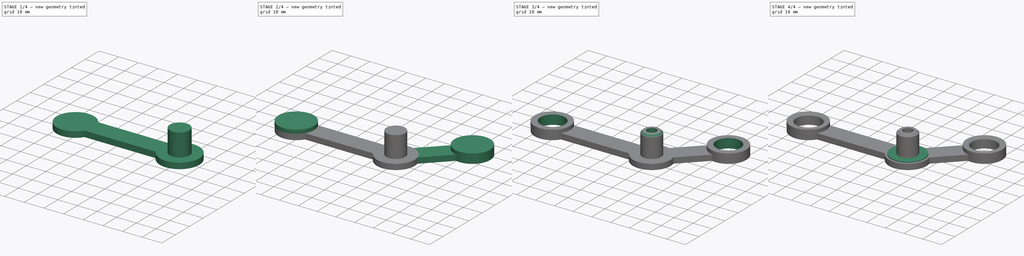
[diagram: build sequence overview — one tinted view per stage of 4, left to right]
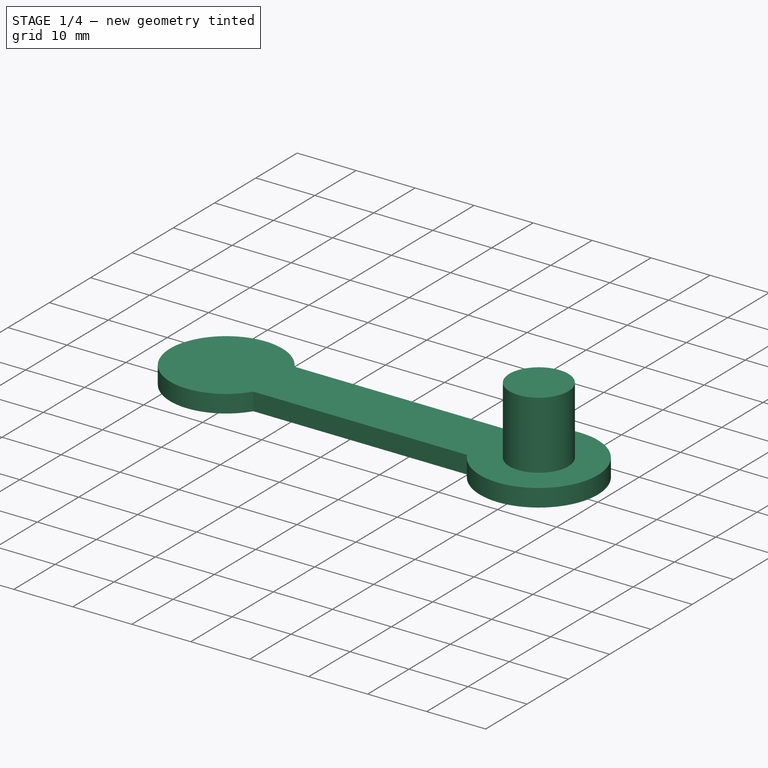
[diagram: stage 1 of 4 — iso view after this stage's code; geometry added in this stage tinted green]
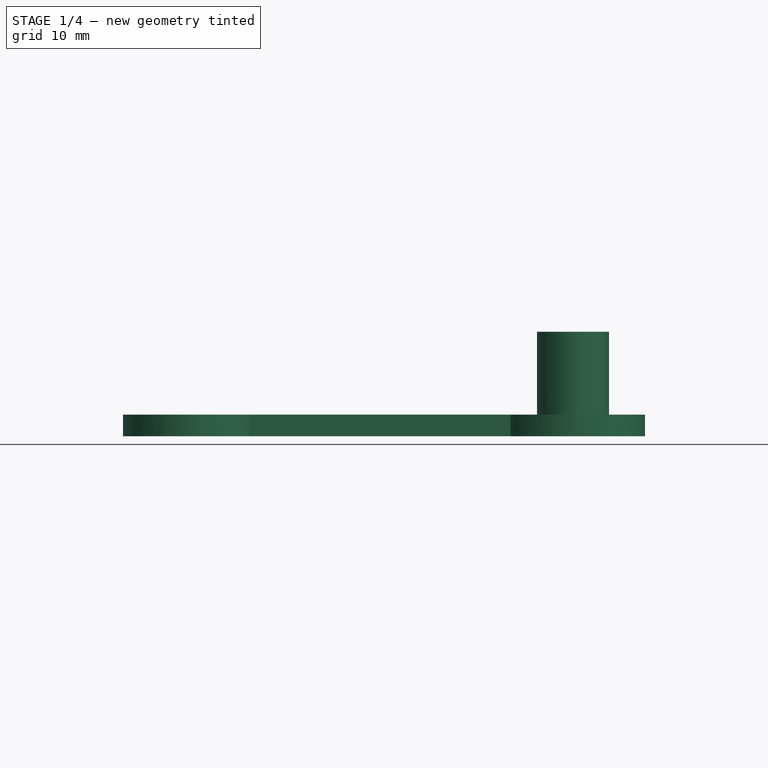
[diagram: stage 1 of 4 — front view after this stage's code; geometry added in this stage tinted green]
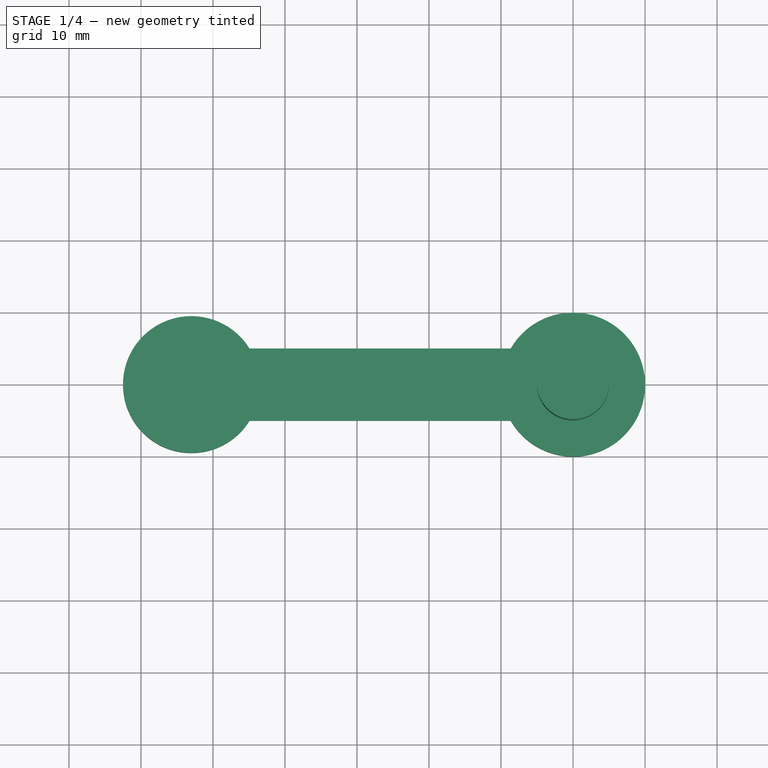
[diagram: stage 1 of 4 — top view after this stage's code; geometry added in this stage tinted green]
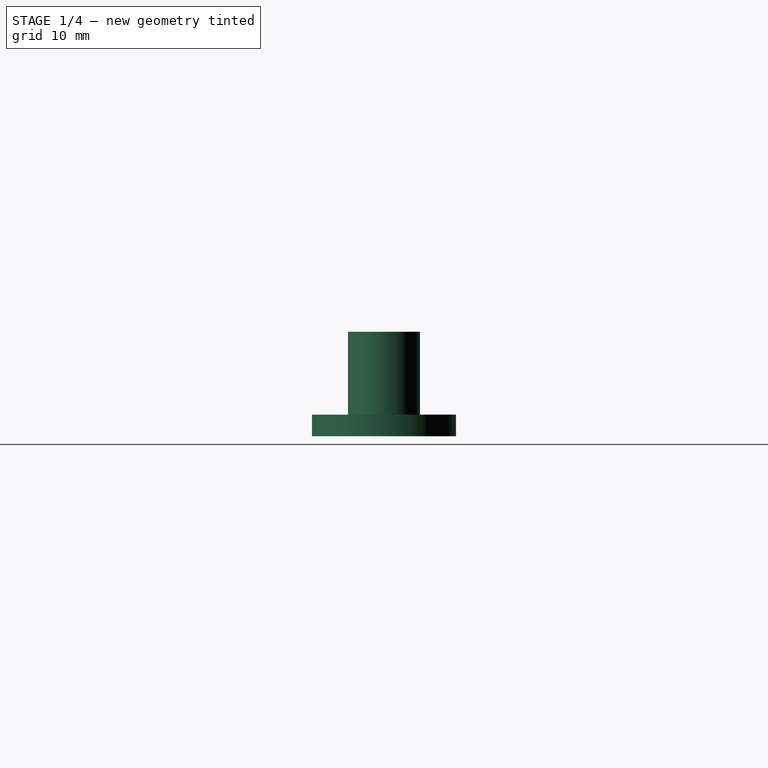
[diagram: stage 1 of 4 — right view after this stage's code; geometry added in this stage tinted green]
FCSTD DOCUMENT  (FreeCAD 0.19R24276 (Git))
Label: Belt_tension_second_floor
License: All rights reserved
LicenseURL: http://en.wikipedia.org/wiki/All_rights_reserved
objects: Sketcher::SketchObject×7, PartDesign::Pad×5, PartDesign::Pocket×2, PartDesign::Chamfer×2, PartDesign::Body×1
note: 26 computed .brp shape members not serialized (recipe doc carries the construction recipe); baked Part::Feature solids carry a one-line shape summary decoded from their .brp

FEATURE [Sketcher::SketchObject] Sketch  label="Sketch_d10"
  FullyConstrained = true
  MapMode = 5
  Support = -> [XY_Plane]
  sketch-geometry (1):
    g0: Circle CenterX=0 CenterY=0 CenterZ=0 NormalX=0 NormalY=0 NormalZ=1 AngleXU=0 Radius=5
  constraints (2):
    c: Coincident(g0,g-1)
    c: Diameter(g0) = 10
FEATURE [PartDesign::Pad] Pad  label="Pad_h14"
  Direction = (1,1,1)
  Length = 11.5
  Length2 = 100
  Profile = -> Sketch
  Type = 0
FEATURE [Sketcher::SketchObject] Sketch001  label="Sketch001_d19_L53"
  FullyConstrained = true
  MapMode = 5
  Placement = pos=(0,0,0) rot=(1,0,0;3.14159rad)
  Support = -> [Pad]
  sketch-geometry (5):
    g0: ArcOfCircle CenterX=-53 CenterY=0 CenterZ=0 NormalX=0 NormalY=0 NormalZ=1 AngleXU=0 Radius=9.5 StartAngle=0.554262 EndAngle=5.72892
    g1: ArcOfCircle CenterX=0 CenterY=0 CenterZ=0 NormalX=0 NormalY=0 NormalZ=1 AngleXU=0 Radius=10 StartAngle=3.66519 EndAngle=8.90118
    g2: LineSegment StartX=-44.9223 StartY=5 StartZ=0 EndX=-8.66025 EndY=5 EndZ=0
    g3: LineSegment StartX=-8.66025 StartY=-5 StartZ=0 EndX=-44.9223 EndY=-5 EndZ=0
    g4: LineSegment StartX=-53 StartY=0 StartZ=0 EndX=-44.9223 EndY=0 EndZ=0
  constraints (15):
    c: PointOnObject(g0,g-1)
    c: DistanceX(g0,g-1) = 53
    c: Diameter(g0) = 19
    c: Coincident(g1,g-1)
    c: Diameter(g1) = 20
    c: Horizontal(g2)
    c: Horizontal(g3)
    c: Coincident(g1,g2)
    c: Coincident(g3,g1)
    c: DistanceY(g1,g1) = 10
    c: Coincident(g4,g0)
    c: Horizontal(g4)
    c: Symmetric(g2,g3,g4)
    c: Coincident(g0,g2)
    c: Coincident(g0,g3)
FEATURE [PartDesign::Pad] Pad001  label="Pad001_d3"
  BaseFeature = -> Pad
  Direction = (1,1,1)
  Length = 3
  Length2 = 100
  Profile = -> Sketch001
  Type = 0
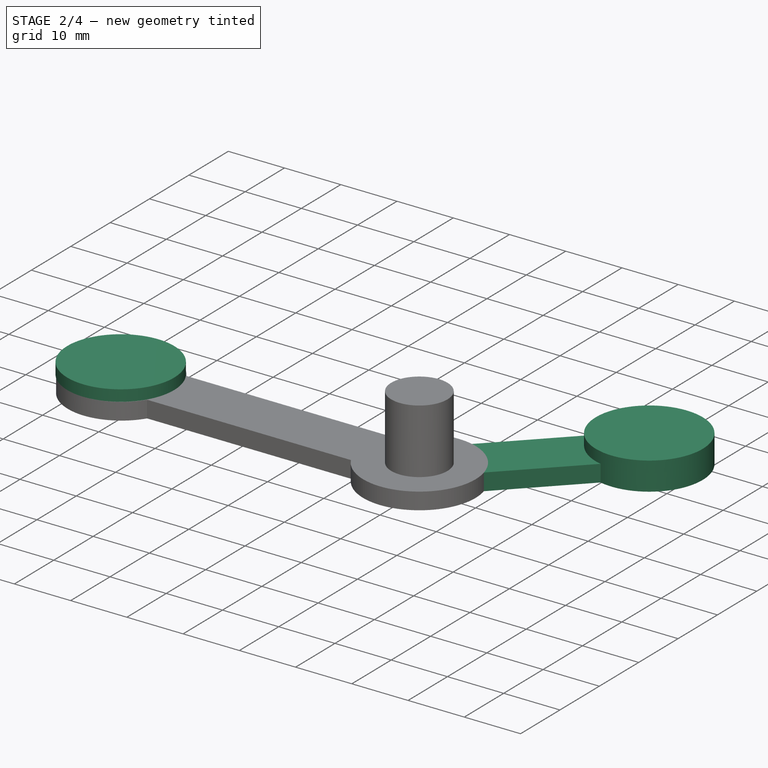
[diagram: stage 2 of 4 — iso view after this stage's code; geometry added in this stage tinted green]
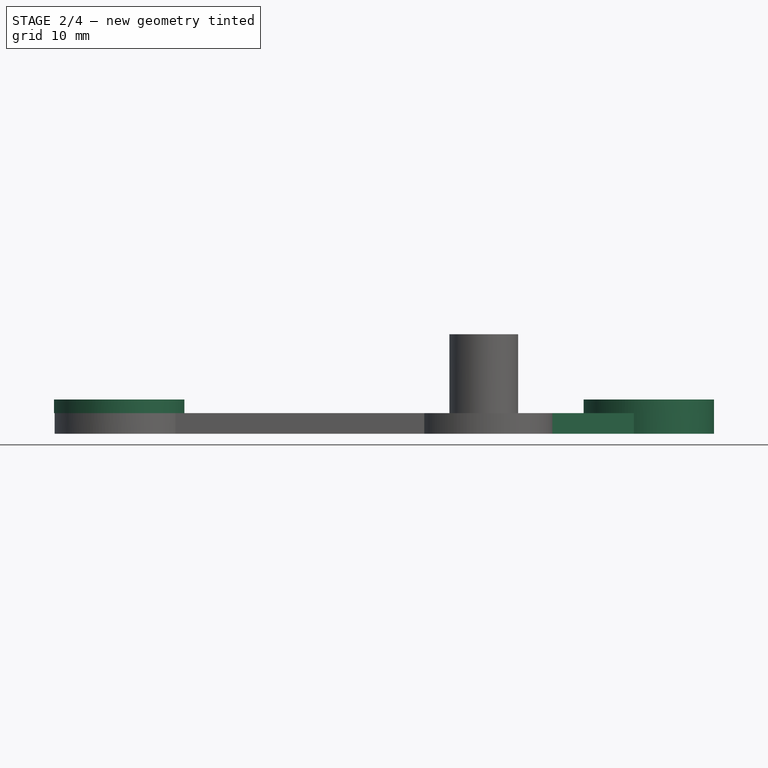
[diagram: stage 2 of 4 — front view after this stage's code; geometry added in this stage tinted green]
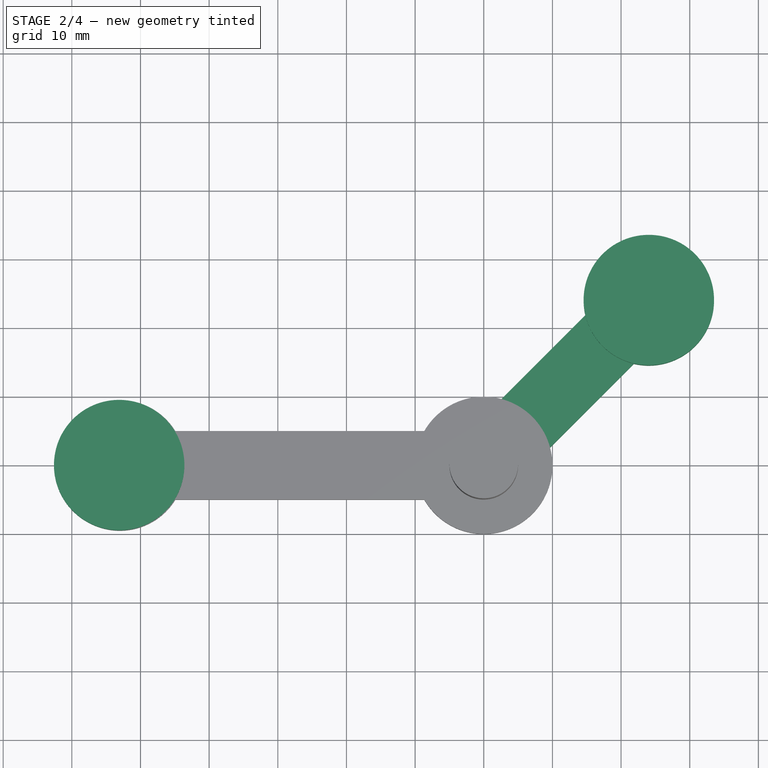
[diagram: stage 2 of 4 — top view after this stage's code; geometry added in this stage tinted green]
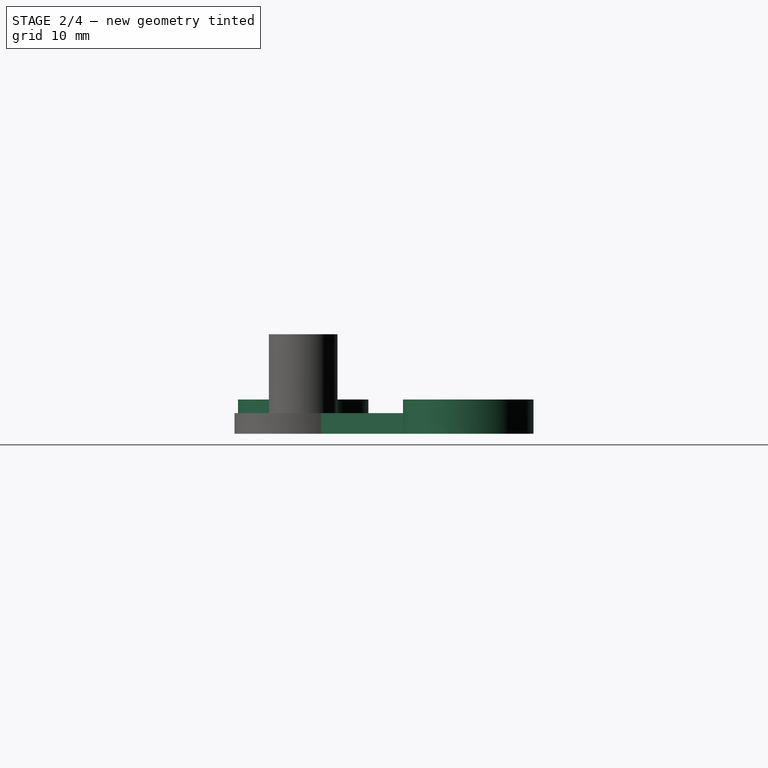
[diagram: stage 2 of 4 — right view after this stage's code; geometry added in this stage tinted green]
FEATURE [Sketcher::SketchObject] Sketch002  label="Sketch002_d19_L53"
  FullyConstrained = false
  MapMode = 5
  Support = -> [Pad001]
  sketch-geometry (16):
    g0: Circle CenterX=-53 CenterY=0 CenterZ=0 NormalX=0 NormalY=0 NormalZ=1 AngleXU=0 Radius=6.5
    g1: Circle CenterX=-53 CenterY=0 CenterZ=0 NormalX=0 NormalY=0 NormalZ=1 AngleXU=0 Radius=9.5
    g2: Circle CenterX=0 CenterY=0 CenterZ=0 NormalX=0 NormalY=0 NormalZ=1 AngleXU=0 Radius=34
    g3: LineSegment StartX=-53 StartY=0 StartZ=0 EndX=24.0416 EndY=-0.246203 EndZ=0
    g4: LineSegment StartX=24.0416 StartY=-0.246203 StartZ=0 EndX=24.0416 EndY=24.0416 EndZ=0
    g5: LineSegment StartX=0 StartY=0 StartZ=0 EndX=24.0416 EndY=24.0416 EndZ=0
    g6: ArcOfCircle CenterX=24.0416 CenterY=24.0416 CenterZ=0 NormalX=0 NormalY=0 NormalZ=1 AngleXU=0 Radius=9.5 StartAngle=4.48125 EndAngle=9.65591
    g7: Circle CenterX=24.0416 CenterY=24.0416 CenterZ=0 NormalX=0 NormalY=0 NormalZ=1 AngleXU=0 Radius=6.5
    g8: ArcOfCircle CenterX=24.0416 CenterY=24.0416 CenterZ=0 NormalX=0 NormalY=0 NormalZ=1 AngleXU=0 Radius=5 StartAngle=5.42419 EndAngle=8.63938
    g9: ArcOfCircle CenterX=0 CenterY=0 CenterZ=0 NormalX=0 NormalY=0 NormalZ=1 AngleXU=0 Radius=5 StartAngle=2.35619 EndAngle=5.49779
    g10: LineSegment StartX=3.53553 StartY=-3.53553 StartZ=0 EndX=21.8653 EndY=14.7943 EndZ=0
    g11: LineSegment StartX=-3.53553 StartY=3.53553 StartZ=0 EndX=14.7943 EndY=21.8653 EndZ=0
    g12: LineSegment StartX=3.53553 StartY=-3.53553 StartZ=0 EndX=0 EndY=0 EndZ=0
    g13: LineSegment StartX=0 StartY=0 StartZ=0 EndX=-3.53553 EndY=3.53553 EndZ=0
    g14: LineSegment StartX=24.6403 StartY=17.5693 StartZ=0 EndX=27.5772 EndY=20.5061 EndZ=0
    g15: LineSegment StartX=17.5693 StartY=24.6403 StartZ=0 EndX=20.5061 EndY=27.5771 EndZ=0
  constraints (41):
    c: PointOnObject(g0,g-1)
    c: DistanceX(g0,g-1) = 53
    c: Diameter(g0) = 13
    c: Coincident(g1,g0)
    c: Diameter(g1) = 19
    c: Coincident(g2,g-1)
    c: Diameter(g2) = 68
    c: Coincident(g3,g1)
    c: Coincident(g4,g3)
    c: Vertical(g4)
    c: PointOnObject(g4,g2)
    c: Coincident(g5,g-1)
    c: Coincident(g5,g4)
    c: Angle(g5,g-1) = -0.785398
    c: Coincident(g6,g4)
    c: Diameter(g6) = 19
    c: Coincident(g7,g4)
    c: Diameter(g7) = 13
    c: Coincident(g8,g4)
    c: Diameter(g8) = 10
    c: Coincident(g9,g-1)
    c: Diameter(g9) = 10
    c: PointOnObject(g14,g8)
    c: Tangent(g10,g8)
    c: Coincident(g12,g10)
    c: Coincident(g12,g-1)
    c: Coincident(g13,g-1)
    c: Coincident(g13,g11)
    c: Perpendicular(g12,g10)
    c: Perpendicular(g11,g13)
    c: Coincident(g9,g10)
    c: Coincident(g9,g11)
    c: PointOnObject(g8,g2)
    c: Coincident(g8,g15)
    c: Coincident(g10,g6)
    c: PointOnObject(g14,g7)
    c: Tangent(g10,g14)
    c: Coincident(g11,g6)
    c: Tangent(g11,g15)
    c: PointOnObject(g15,g7)
    c: Parallel(g10,g11)
FEATURE [PartDesign::Pad] Pad002  label="Pad002_h2"
  BaseFeature = -> Pad001
  Direction = (1,1,1)
  Length = 3
  Length2 = 100
  Profile = -> Sketch002
  Reversed = true
  Type = 0
FEATURE [Sketcher::SketchObject] Sketch003  label="Sketch003_d19"
  FullyConstrained = false
  MapMode = 5
  Support = -> [Pad002]
  sketch-geometry (28):
    g0: Circle CenterX=-53.1019 CenterY=0 CenterZ=0 NormalX=0 NormalY=0 NormalZ=1 AngleXU=0 Radius=9.5
    g1: Circle CenterX=24.0416 CenterY=24.0416 CenterZ=0 NormalX=0 NormalY=0 NormalZ=1 AngleXU=0 Radius=9.5
    g2: Circle CenterX=0 CenterY=0 CenterZ=0 NormalX=0 NormalY=0 NormalZ=1 AngleXU=0 Radius=34
    g3: LineSegment StartX=0 StartY=0 StartZ=0 EndX=24.0416 EndY=24.0416 EndZ=0
    g4: LineSegment StartX=-119.39 StartY=-26.1967 StartZ=0 EndX=-107.305 EndY=-26.1967 EndZ=0
    g5: LineSegment StartX=-107.305 StartY=-26.1967 StartZ=0 EndX=-107.305 EndY=-36.1967 EndZ=0
    g6: LineSegment StartX=-107.305 StartY=-36.1967 StartZ=0 EndX=-119.39 EndY=-36.1967 EndZ=0
    g7: LineSegment StartX=-119.39 StartY=-36.1967 StartZ=0 EndX=-119.39 EndY=-26.1967 EndZ=0
    g8: LineSegment StartX=-119.39 StartY=-25.1967 StartZ=0 EndX=-77.7189 EndY=-25.1967 EndZ=0
    g9: LineSegment StartX=-77.7189 StartY=-25.1967 StartZ=0 EndX=-77.7189 EndY=-26.1967 EndZ=0
    g10: LineSegment StartX=-77.7189 StartY=-26.1967 StartZ=0 EndX=-119.39 EndY=-26.1967 EndZ=0
    g11: LineSegment StartX=-119.39 StartY=-26.1967 StartZ=0 EndX=-119.39 EndY=-25.1967 EndZ=0
    g12: LineSegment StartX=-119.39 StartY=-25.1967 StartZ=0 EndX=-101.537 EndY=-25.1967 EndZ=0
    g13: LineSegment StartX=-101.537 StartY=-25.1967 StartZ=0 EndX=-101.537 EndY=-20.1967 EndZ=0
    g14: LineSegment StartX=-101.537 StartY=-20.1967 StartZ=0 EndX=-119.39 EndY=-20.1967 EndZ=0
    g15: LineSegment StartX=-119.39 StartY=-20.1967 StartZ=0 EndX=-119.39 EndY=-25.1967 EndZ=0
    g16: LineSegment StartX=-101.537 StartY=-25.1967 StartZ=0 EndX=-93.6301 EndY=-25.1967 EndZ=0
    g17: LineSegment StartX=-93.6301 StartY=-25.1967 StartZ=0 EndX=-93.6301 EndY=-22.1967 EndZ=0
    g18: LineSegment StartX=-93.6301 StartY=-22.1967 StartZ=0 EndX=-101.537 EndY=-22.1967 EndZ=0
    g19: LineSegment StartX=-101.537 StartY=-22.1967 StartZ=0 EndX=-101.537 EndY=-25.1967 EndZ=0
    g20: LineSegment StartX=-93.6301 StartY=-25.1967 StartZ=0 EndX=-74.242 EndY=-25.1967 EndZ=0
    g21: LineSegment StartX=-74.242 StartY=-25.1967 StartZ=0 EndX=-74.242 EndY=-19.1967 EndZ=0
    g22: LineSegment StartX=-74.242 StartY=-19.1967 StartZ=0 EndX=-93.6301 EndY=-19.1967 EndZ=0
    g23: LineSegment StartX=-93.6301 StartY=-19.1967 StartZ=0 EndX=-93.6301 EndY=-25.1967 EndZ=0
    g24: LineSegment StartX=-93.6301 StartY=-19.1967 StartZ=0 EndX=-78.923 EndY=-19.1967 EndZ=0
    g25: LineSegment StartX=-78.923 StartY=-19.1967 StartZ=0 EndX=-78.923 EndY=-8.19675 EndZ=0
    g26: LineSegment StartX=-78.923 StartY=-8.19675 StartZ=0 EndX=-93.6301 EndY=-8.19675 EndZ=0
    g27: LineSegment StartX=-93.6301 StartY=-8.19675 StartZ=0 EndX=-93.6301 EndY=-19.1967 EndZ=0
  constraints (68):
    c: PointOnObject(g0,g-1)
    c: Diameter(g0) = 19
    c: Diameter(g1) = 19
    c: Coincident(g2,g-1)
    c: Diameter(g2) = 68
    c: Coincident(g3,g-1)
    c: Angle(g3,g-1) = -0.785398
    c: PointOnObject(g3,g2)
    c: Coincident(g1,g3)
    c: Coincident(g4,g5)
    c: Coincident(g5,g6)
    c: Coincident(g6,g7)
    c: Coincident(g7,g4)
    c: Horizontal(g4)
    c: Horizontal(g6)
    c: Vertical(g5)
    c: Vertical(g7)
    c: Coincident(g8,g9)
    c: Coincident(g9,g10)
    c: Coincident(g10,g11)
    c: Coincident(g11,g8)
    c: Horizontal(g8)
    c: Horizontal(g10)
    c: Vertical(g9)
    c: Vertical(g11)
    c: DistanceY(g7,g7) = 10
    c: DistanceY(g11,g11) = 1
    c: Coincident(g10,g4)
    c: Coincident(g12,g13)
    c: Coincident(g13,g14)
    c: Coincident(g14,g15)
    c: Coincident(g15,g12)
    c: Horizontal(g12)
    c: Horizontal(g14)
    c: Vertical(g13)
    c: Vertical(g15)
    c: Coincident(g12,g8)
    c: DistanceY(g15,g15) = 5
    c: Coincident(g16,g17)
    c: Coincident(g17,g18)
    c: Coincident(g18,g19)
    c: Coincident(g19,g16)
    c: Horizontal(g16)
    c: Horizontal(g18)
    c: Vertical(g17)
    c: Vertical(g19)
    c: Coincident(g16,g12)
    c: DistanceY(g17,g17) = 3
    c: Coincident(g20,g21)
    c: Coincident(g21,g22)
    c: Coincident(g22,g23)
    c: Coincident(g23,g20)
    c: Horizontal(g20)
    c: Horizontal(g22)
    c: Vertical(g21)
    c: Vertical(g23)
    c: Coincident(g20,g16)
    c: Coincident(g24,g25)
    c: Coincident(g25,g26)
    c: Coincident(g26,g27)
    c: Coincident(g27,g24)
    c: Horizontal(g24)
    c: Horizontal(g26)
    c: Vertical(g25)
    c: Vertical(g27)
    c: Coincident(g24,g22)
    c: DistanceY(g25,g25) = 11
    c: DistanceY(g5,g25) = 28
FEATURE [PartDesign::Pad] Pad003  label="Pad003_h2"
  BaseFeature = -> Pad002
  Direction = (1,1,1)
  Length = 2
  Length2 = 100
  Profile = -> Sketch003
  Type = 0
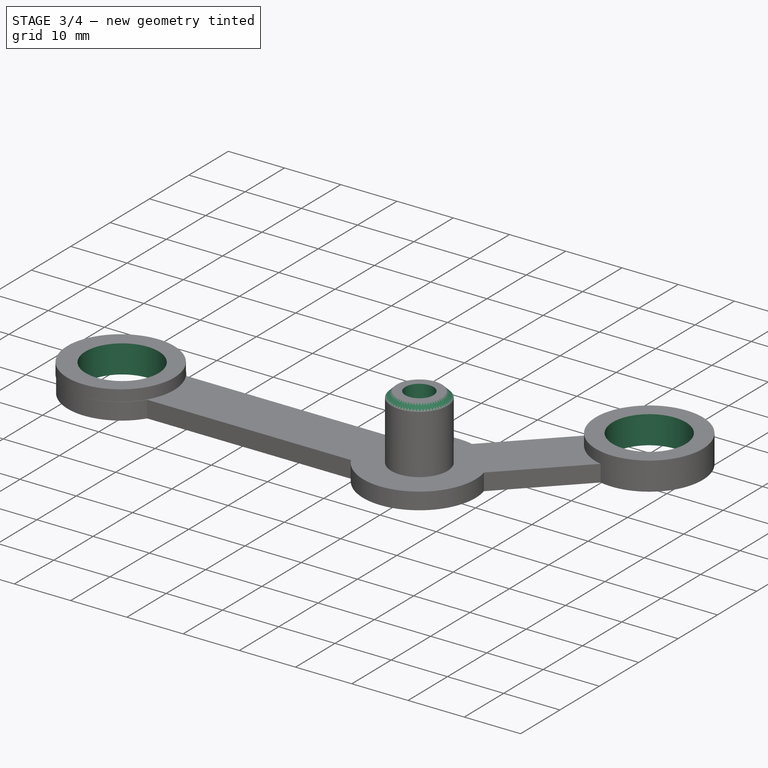
[diagram: stage 3 of 4 — iso view after this stage's code; geometry added in this stage tinted green]
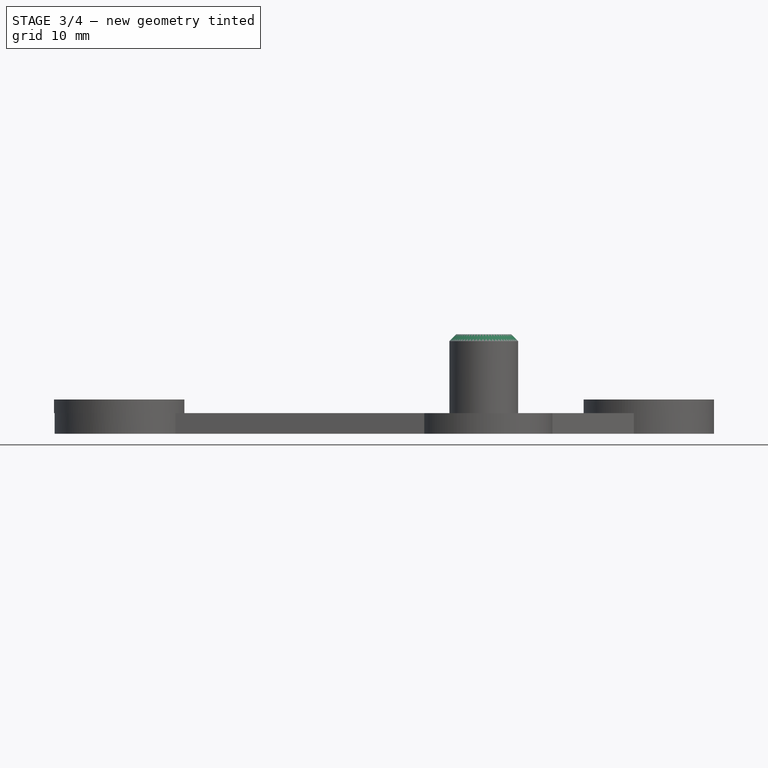
[diagram: stage 3 of 4 — front view after this stage's code; geometry added in this stage tinted green]
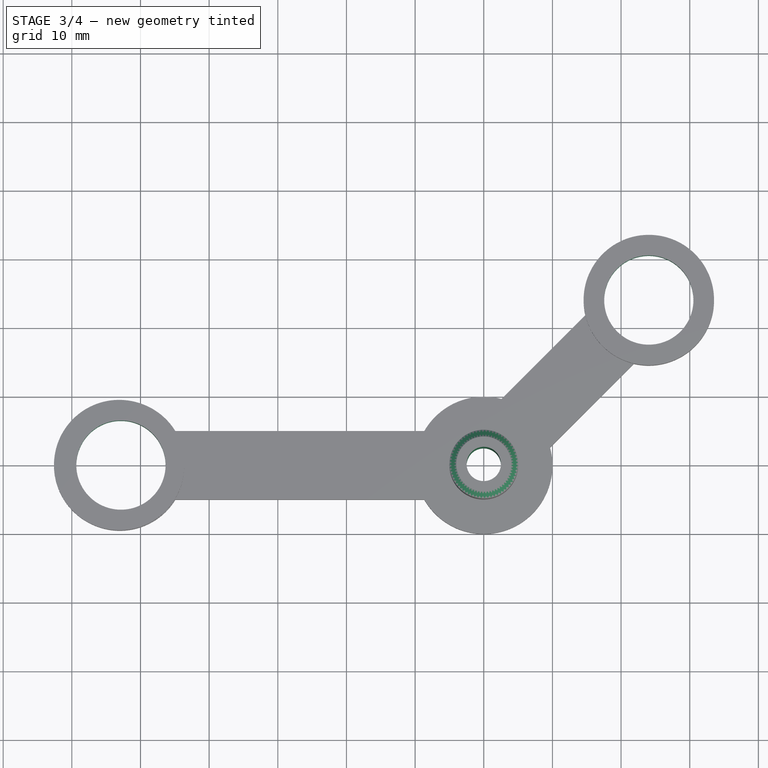
[diagram: stage 3 of 4 — top view after this stage's code; geometry added in this stage tinted green]
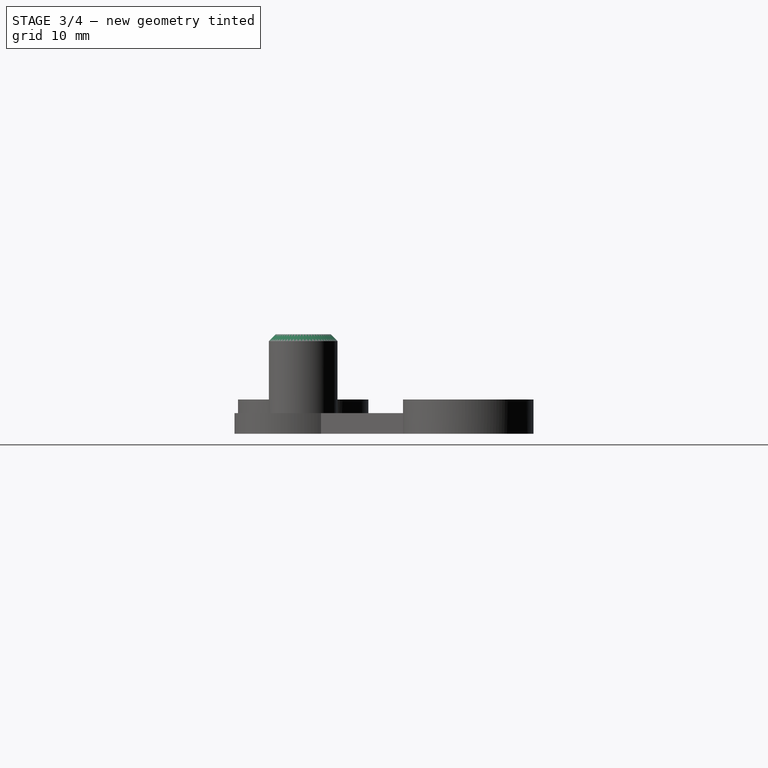
[diagram: stage 3 of 4 — right view after this stage's code; geometry added in this stage tinted green]
FEATURE [Sketcher::SketchObject] Sketch004
  FullyConstrained = false
  MapMode = 5
  Placement = pos=(0,0,2) rot=(0,0,1;0rad)
  Support = -> [Pad003]
  sketch-geometry (4):
    g0: Circle CenterX=-52.8446 CenterY=0 CenterZ=0 NormalX=0 NormalY=0 NormalZ=1 AngleXU=0 Radius=6.5
    g1: Circle CenterX=24.0416 CenterY=24.0416 CenterZ=0 NormalX=0 NormalY=0 NormalZ=1 AngleXU=0 Radius=6.5
    g2: Circle CenterX=0 CenterY=0 CenterZ=0 NormalX=0 NormalY=0 NormalZ=1 AngleXU=0 Radius=34
    g3: LineSegment StartX=0 StartY=0 StartZ=0 EndX=24.0416 EndY=24.0416 EndZ=0
  constraints (9):
    c: PointOnObject(g0,g-1)
    c: Diameter(g1) = 13
    c: Equal(g1,g0)
    c: Coincident(g2,g-1)
    c: Diameter(g2) = 68
    c: Coincident(g3,g-1)
    c: PointOnObject(g3,g2)
    c: Angle(g3,g-1) = -0.785398
    c: Coincident(g1,g3)
FEATURE [PartDesign::Pocket] Pocket
  BaseFeature = -> Pad003
  Length = 5
  Length2 = 100
  Profile = -> Sketch004
  Type = 1
FEATURE [Sketcher::SketchObject] Sketch005
  FullyConstrained = true
  MapMode = 5
  Placement = pos=(0,0,11.5) rot=(0,0,1;0rad)
  Support = -> [Pocket]
  sketch-geometry (1):
    g0: Circle CenterX=0 CenterY=0 CenterZ=0 NormalX=0 NormalY=0 NormalZ=1 AngleXU=0 Radius=2.5
  constraints (2):
    c: Coincident(g0,g-1)
    c: Diameter(g0) = 5
FEATURE [PartDesign::Pocket] Pocket001
  BaseFeature = -> Pocket
  Length = 5
  Length2 = 100
  Profile = -> Sketch005
  Type = 1
FEATURE [PartDesign::Chamfer] Chamfer
  Angle = 45
  Base = -> Pocket001 [Edge36]
  BaseFeature = -> Pocket001
  ChamferType = 0
  FlipDirection = false
  Size = 1
  Size2 = 1
  SupportTransform = false
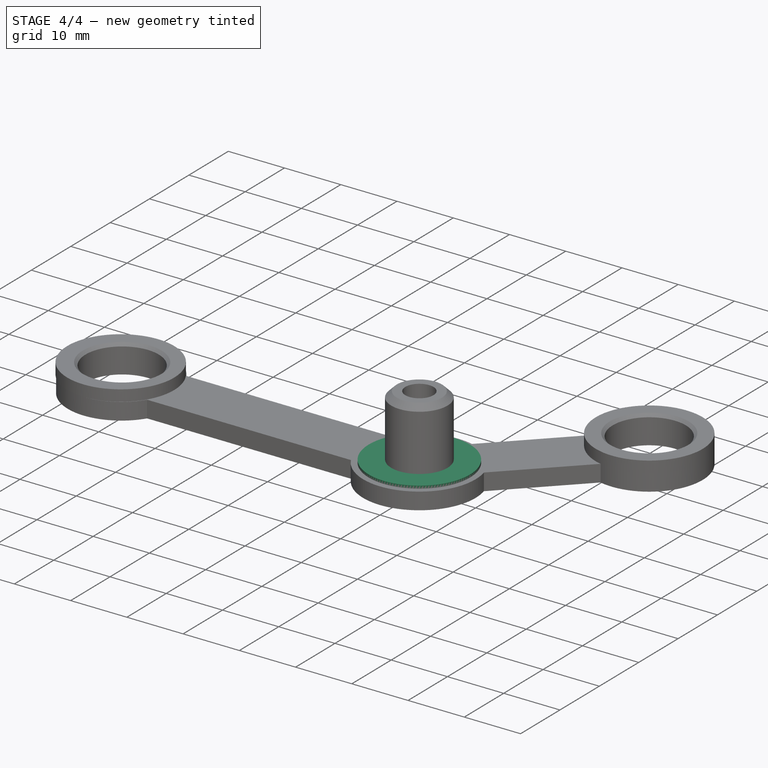
[diagram: stage 4 of 4 — iso view after this stage's code; geometry added in this stage tinted green]
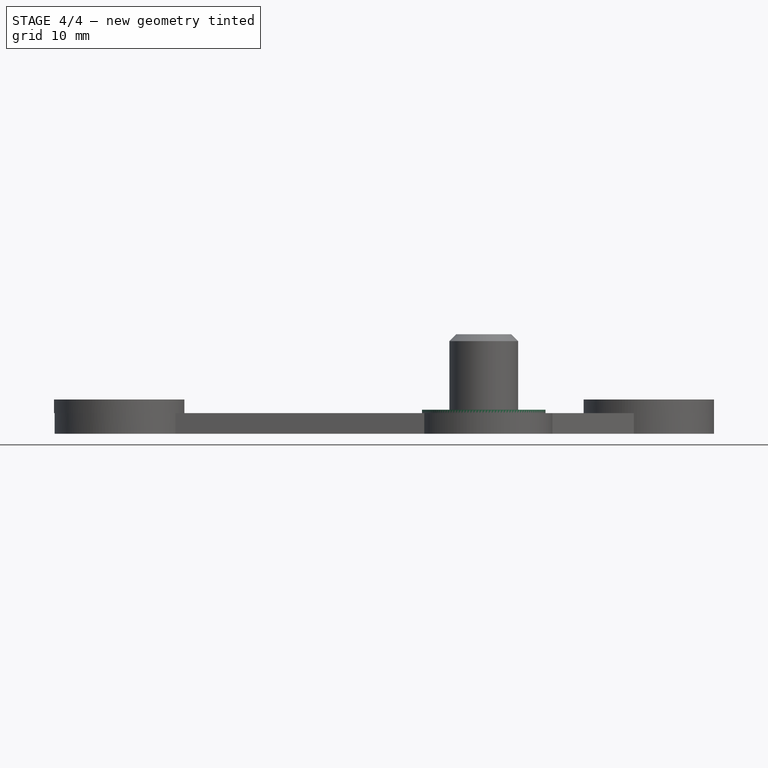
[diagram: stage 4 of 4 — front view after this stage's code; geometry added in this stage tinted green]
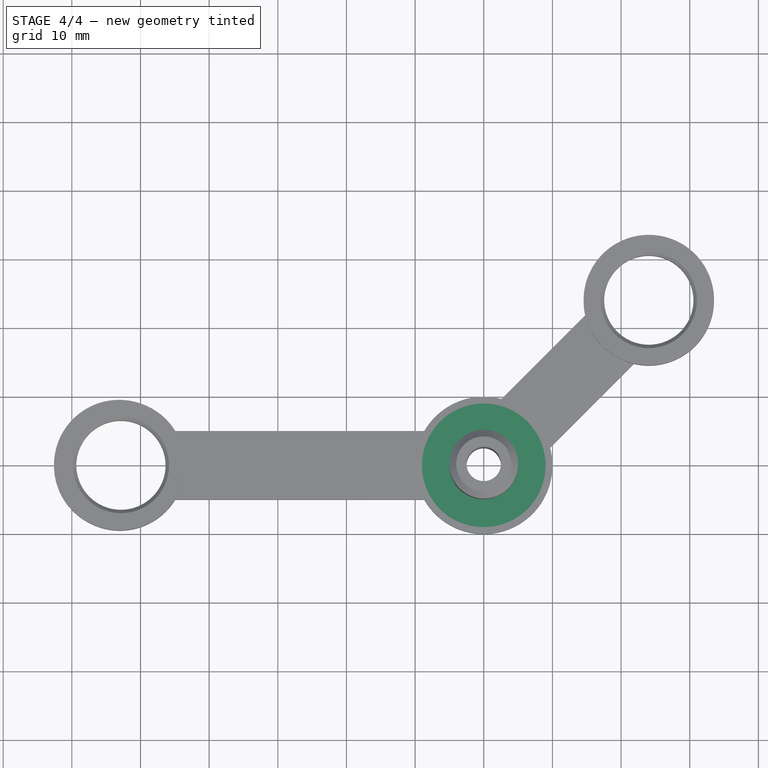
[diagram: stage 4 of 4 — top view after this stage's code; geometry added in this stage tinted green]
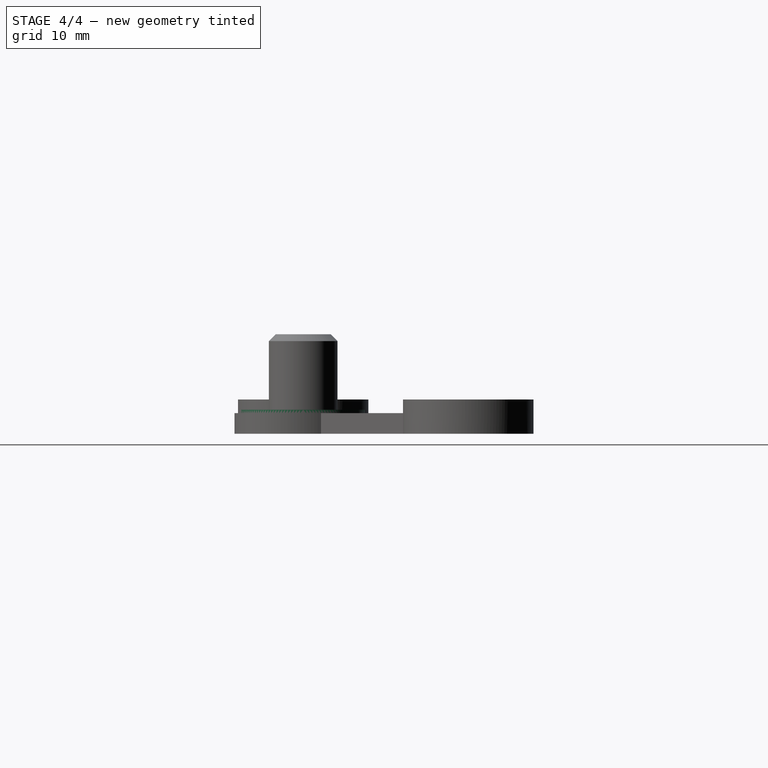
[diagram: stage 4 of 4 — right view after this stage's code; geometry added in this stage tinted green]
FEATURE [PartDesign::Chamfer] Chamfer001
  Angle = 45
  Base = -> Chamfer [Edge60,Edge58]
  BaseFeature = -> Chamfer
  ChamferType = 0
  FlipDirection = false
  Size = 0.5
  Size2 = 1
  SupportTransform = false
FEATURE [Sketcher::SketchObject] Sketch006
  FullyConstrained = true
  MapMode = 5
  Support = -> [Chamfer001]
  sketch-geometry (2):
    g0: Circle CenterX=0 CenterY=0 CenterZ=0 NormalX=0 NormalY=0 NormalZ=1 AngleXU=0 Radius=5
    g1: Circle CenterX=0 CenterY=0 CenterZ=0 NormalX=0 NormalY=0 NormalZ=1 AngleXU=0 Radius=9
  constraints (4):
    c: Coincident(g0,g-1)
    c: Coincident(g1,g0)
    c: Diameter(g0) = 10
    c: Diameter(g1) = 18
FEATURE [PartDesign::Pad] Pad004  label="Pad004_h3"
  BaseFeature = -> Chamfer001
  Direction = (1,1,1)
  Length = 0.5
  Length2 = 100
  Profile = -> Sketch006
  Type = 0
FEATURE [PartDesign::Body] Body
  Group = -> [Sketch,Pad,Sketch001,Pad001,Sketch002,Pad002,Sketch003,Pad003,Sketch004,Pocket,Sketch005,Pocket001,Chamfer,Chamfer001,Sketch006,Pad004]
  Origin = -> Origin
  Tip = -> Pad004
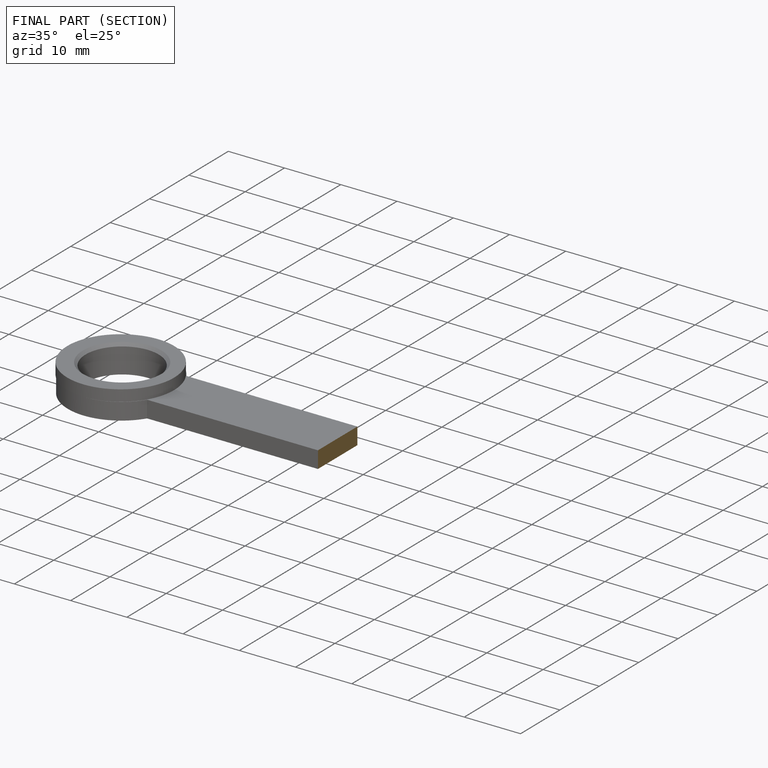
[diagram: finished part — half-section view (interior)]
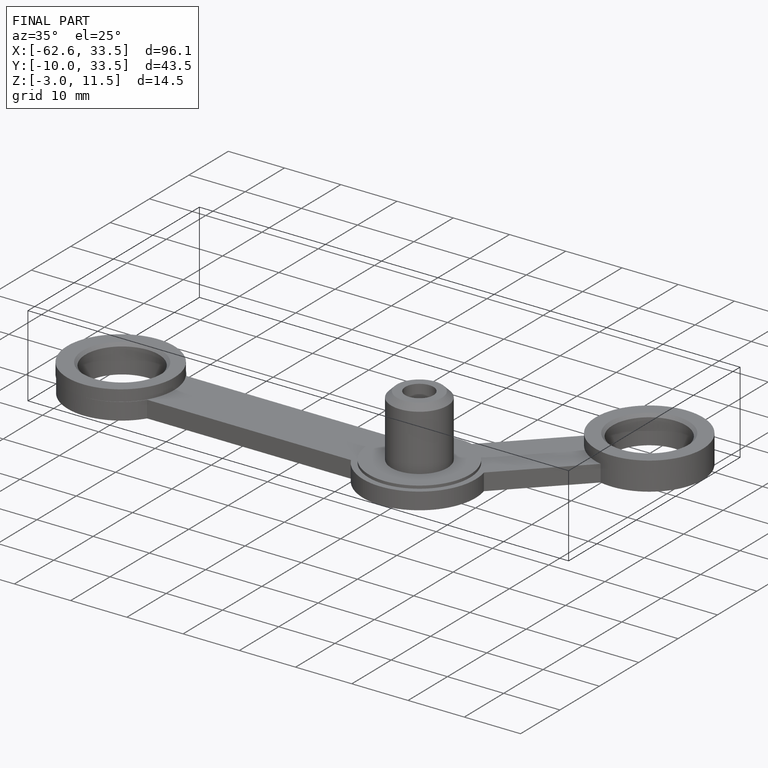
[diagram: finished part — iso view with bounding-box wireframe]
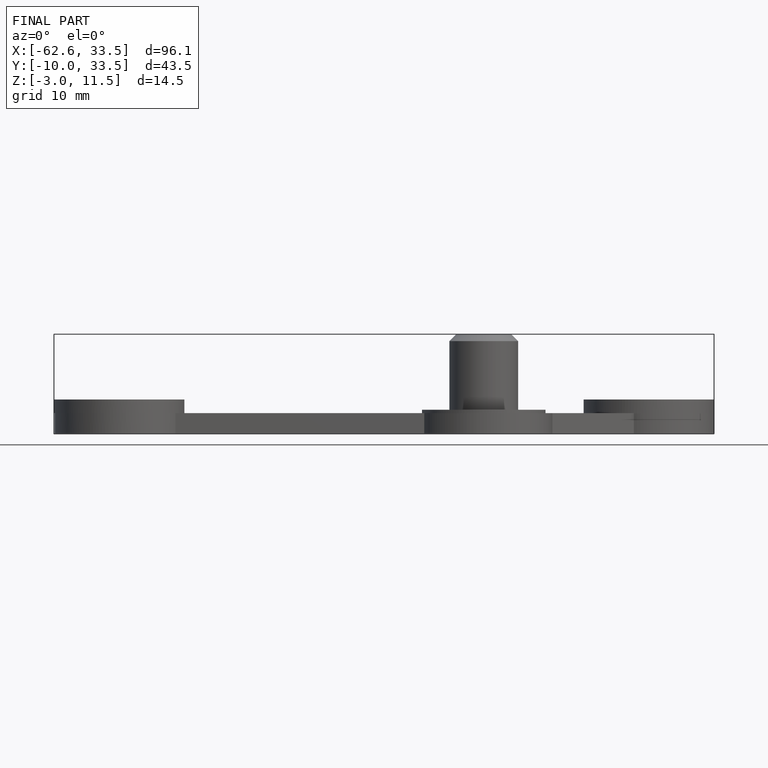
[diagram: finished part — front view with bounding-box wireframe]
